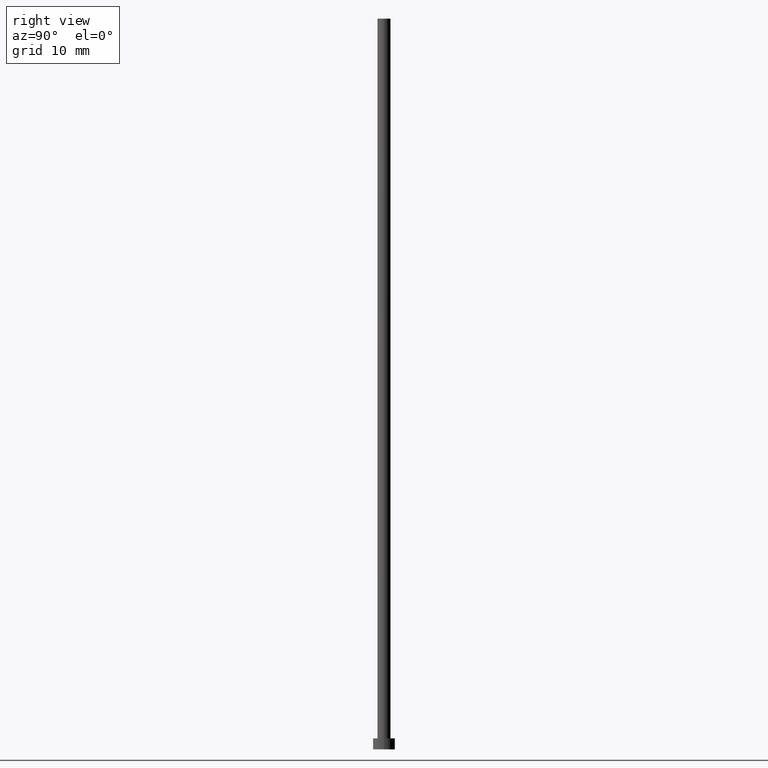
[diagram: clean part render]
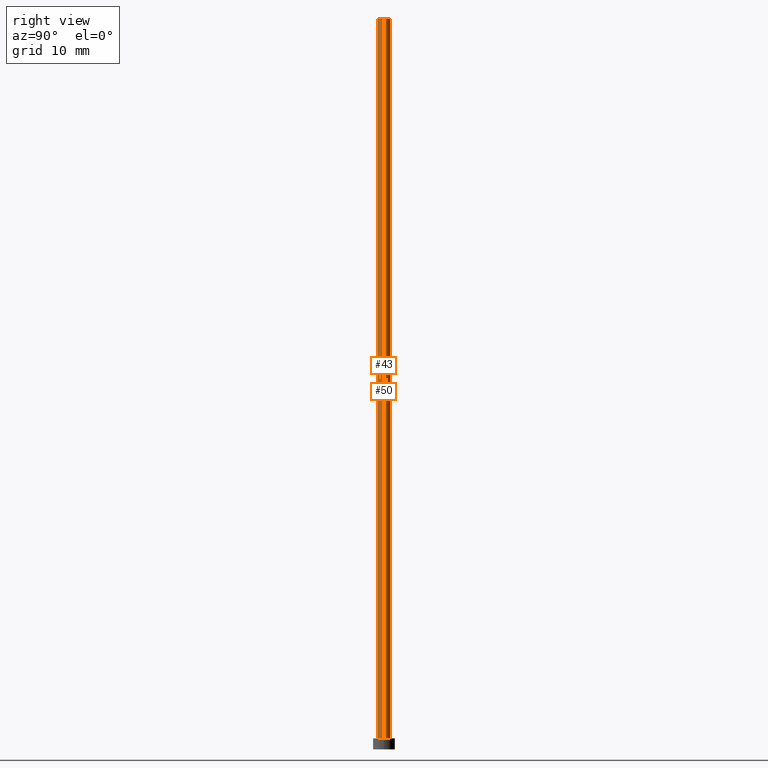
[diagram: same view with one multi-face feature highlighted, each face labeled with its STEP entity id]
A machine part, right view. The highlighted faces form ONE feature: a constant-radius fillet chain: 2 tangent blend faces with common blend radius 0.9 mm. The faces share edges in the B-rep.
Their STEP definitions:
[1] entity #43 (Cylinder):
#1 = DIRECTION ( 'NONE',  ( -1.000000000000000000, 0.000000000000000000, 0.000000000000000000 ) ) ;
#3 = EDGE_LOOP ( 'NONE', ( #76, #69, #252, #17 ) ) ;
#4 = CARTESIAN_POINT ( 'NONE',  ( 0.000000000000000000, 0.000000000000000000, 100.0000000000000000 ) ) ;
#5 = DIRECTION ( 'NONE',  ( 1.000000000000000000, 0.000000000000000000, 0.000000000000000000 ) ) ;
#13 = EDGE_CURVE ( 'NONE', #19, #192, #148, .T. ) ;
#14 = VERTEX_POINT ( 'NONE', #20 ) ;
#17 = ORIENTED_EDGE ( 'NONE', *, *, #87, .T. ) ;
#19 = VERTEX_POINT ( 'NONE', #126 ) ;
#20 = CARTESIAN_POINT ( 'NONE',  ( -0.9000000000000000222, 0.000000000000000000, 1.500000000000000000 ) ) ;
#23 = DIRECTION ( 'NONE',  ( -0.000000000000000000, -0.000000000000000000, -1.000000000000000000 ) ) ;
#38 = EDGE_CURVE ( 'NONE', #214, #14, #255, .T. ) ;
#43 = ADVANCED_FACE ( 'NONE', ( #162 ), #109, .T. ) ;
#48 = CIRCLE ( 'NONE', #106, 0.9000000000000000222 ) ;
#58 = CARTESIAN_POINT ( 'NONE',  ( 0.9000000000000000222, 1.102182119232617788E-16, 100.0000000000000000 ) ) ;
#69 = ORIENTED_EDGE ( 'NONE', *, *, #114, .F. ) ;
#76 = ORIENTED_EDGE ( 'NONE', *, *, #13, .F. ) ;
#80 = CIRCLE ( 'NONE', #203, 0.9000000000000000222 ) ;
#87 = EDGE_CURVE ( 'NONE', #14, #192, #48, .T. ) ;
#88 = CARTESIAN_POINT ( 'NONE',  ( 0.000000000000000000, 0.000000000000000000, 100.0000000000000000 ) ) ;
#92 = DIRECTION ( 'NONE',  ( 1.000000000000000000, 0.000000000000000000, 0.000000000000000000 ) ) ;
#106 = AXIS2_PLACEMENT_3D ( 'NONE', #116, #201, #5 ) ;
#109 = CYLINDRICAL_SURFACE ( 'NONE', #164, 0.9000000000000000222 ) ;
#114 = EDGE_CURVE ( 'NONE', #214, #19, #80, .T. ) ;
#116 = CARTESIAN_POINT ( 'NONE',  ( 0.000000000000000000, 0.000000000000000000, 1.500000000000000000 ) ) ;
#126 = CARTESIAN_POINT ( 'NONE',  ( 0.9000000000000000222, 1.102182119232617788E-16, 100.0000000000000000 ) ) ;
#146 = CARTESIAN_POINT ( 'NONE',  ( -0.9000000000000000222, 0.000000000000000000, 100.0000000000000000 ) ) ;
#148 = LINE ( 'NONE', #58, #159 ) ;
#152 = DIRECTION ( 'NONE',  ( 0.000000000000000000, 0.000000000000000000, 1.000000000000000000 ) ) ;
#159 = VECTOR ( 'NONE', #198, 1000.000000000000000 ) ;
#161 = CARTESIAN_POINT ( 'NONE',  ( 0.9000000000000000222, 1.102182119232617788E-16, 1.500000000000000000 ) ) ;
#162 = FACE_OUTER_BOUND ( 'NONE', #3, .T. ) ;
#164 = AXIS2_PLACEMENT_3D ( 'NONE', #88, #182, #1 ) ;
#174 = VECTOR ( 'NONE', #23, 1000.000000000000000 ) ;
#182 = DIRECTION ( 'NONE',  ( -0.000000000000000000, -0.000000000000000000, -1.000000000000000000 ) ) ;
#192 = VERTEX_POINT ( 'NONE', #161 ) ;
#198 = DIRECTION ( 'NONE',  ( -0.000000000000000000, -0.000000000000000000, -1.000000000000000000 ) ) ;
#201 = DIRECTION ( 'NONE',  ( 0.000000000000000000, 0.000000000000000000, 1.000000000000000000 ) ) ;
#203 = AXIS2_PLACEMENT_3D ( 'NONE', #4, #152, #92 ) ;
#214 = VERTEX_POINT ( 'NONE', #146 ) ;
#216 = CARTESIAN_POINT ( 'NONE',  ( -0.9000000000000000222, 0.000000000000000000, 100.0000000000000000 ) ) ;
#252 = ORIENTED_EDGE ( 'NONE', *, *, #38, .T. ) ;
#255 = LINE ( 'NONE', #216, #174 ) ;
[2] entity #50 (Cylinder):
#6 = CARTESIAN_POINT ( 'NONE',  ( 0.000000000000000000, 0.000000000000000000, 100.0000000000000000 ) ) ;
#13 = EDGE_CURVE ( 'NONE', #19, #192, #148, .T. ) ;
#14 = VERTEX_POINT ( 'NONE', #20 ) ;
#19 = VERTEX_POINT ( 'NONE', #126 ) ;
#20 = CARTESIAN_POINT ( 'NONE',  ( -0.9000000000000000222, 0.000000000000000000, 1.500000000000000000 ) ) ;
#23 = DIRECTION ( 'NONE',  ( -0.000000000000000000, -0.000000000000000000, -1.000000000000000000 ) ) ;
#30 = ORIENTED_EDGE ( 'NONE', *, *, #91, .F. ) ;
#38 = EDGE_CURVE ( 'NONE', #214, #14, #255, .T. ) ;
#45 = FACE_OUTER_BOUND ( 'NONE', #57, .T. ) ;
#49 = DIRECTION ( 'NONE',  ( 0.000000000000000000, 0.000000000000000000, 1.000000000000000000 ) ) ;
#50 = ADVANCED_FACE ( 'NONE', ( #45 ), #197, .T. ) ;
#57 = EDGE_LOOP ( 'NONE', ( #30, #125, #85, #129 ) ) ;
#58 = CARTESIAN_POINT ( 'NONE',  ( 0.9000000000000000222, 1.102182119232617788E-16, 100.0000000000000000 ) ) ;
#67 = AXIS2_PLACEMENT_3D ( 'NONE', #231, #242, #227 ) ;
#85 = ORIENTED_EDGE ( 'NONE', *, *, #219, .T. ) ;
#91 = EDGE_CURVE ( 'NONE', #19, #214, #184, .T. ) ;
#94 = AXIS2_PLACEMENT_3D ( 'NONE', #6, #49, #239 ) ;
#110 = DIRECTION ( 'NONE',  ( 1.000000000000000000, 0.000000000000000000, 0.000000000000000000 ) ) ;
#119 = AXIS2_PLACEMENT_3D ( 'NONE', #215, #127, #110 ) ;
#125 = ORIENTED_EDGE ( 'NONE', *, *, #13, .T. ) ;
#126 = CARTESIAN_POINT ( 'NONE',  ( 0.9000000000000000222, 1.102182119232617788E-16, 100.0000000000000000 ) ) ;
#127 = DIRECTION ( 'NONE',  ( 0.000000000000000000, 0.000000000000000000, 1.000000000000000000 ) ) ;
#129 = ORIENTED_EDGE ( 'NONE', *, *, #38, .F. ) ;
#133 = CIRCLE ( 'NONE', #119, 0.9000000000000000222 ) ;
#146 = CARTESIAN_POINT ( 'NONE',  ( -0.9000000000000000222, 0.000000000000000000, 100.0000000000000000 ) ) ;
#148 = LINE ( 'NONE', #58, #159 ) ;
#159 = VECTOR ( 'NONE', #198, 1000.000000000000000 ) ;
#161 = CARTESIAN_POINT ( 'NONE',  ( 0.9000000000000000222, 1.102182119232617788E-16, 1.500000000000000000 ) ) ;
#174 = VECTOR ( 'NONE', #23, 1000.000000000000000 ) ;
#184 = CIRCLE ( 'NONE', #94, 0.9000000000000000222 ) ;
#192 = VERTEX_POINT ( 'NONE', #161 ) ;
#197 = CYLINDRICAL_SURFACE ( 'NONE', #67, 0.9000000000000000222 ) ;
#198 = DIRECTION ( 'NONE',  ( -0.000000000000000000, -0.000000000000000000, -1.000000000000000000 ) ) ;
#214 = VERTEX_POINT ( 'NONE', #146 ) ;
#215 = CARTESIAN_POINT ( 'NONE',  ( 0.000000000000000000, 0.000000000000000000, 1.500000000000000000 ) ) ;
#216 = CARTESIAN_POINT ( 'NONE',  ( -0.9000000000000000222, 0.000000000000000000, 100.0000000000000000 ) ) ;
#219 = EDGE_CURVE ( 'NONE', #192, #14, #133, .T. ) ;
#227 = DIRECTION ( 'NONE',  ( -1.000000000000000000, 0.000000000000000000, 0.000000000000000000 ) ) ;
#231 = CARTESIAN_POINT ( 'NONE',  ( 0.000000000000000000, 0.000000000000000000, 100.0000000000000000 ) ) ;
#239 = DIRECTION ( 'NONE',  ( 1.000000000000000000, 0.000000000000000000, 0.000000000000000000 ) ) ;
#242 = DIRECTION ( 'NONE',  ( -0.000000000000000000, -0.000000000000000000, -1.000000000000000000 ) ) ;
#255 = LINE ( 'NONE', #216, #174 ) ;